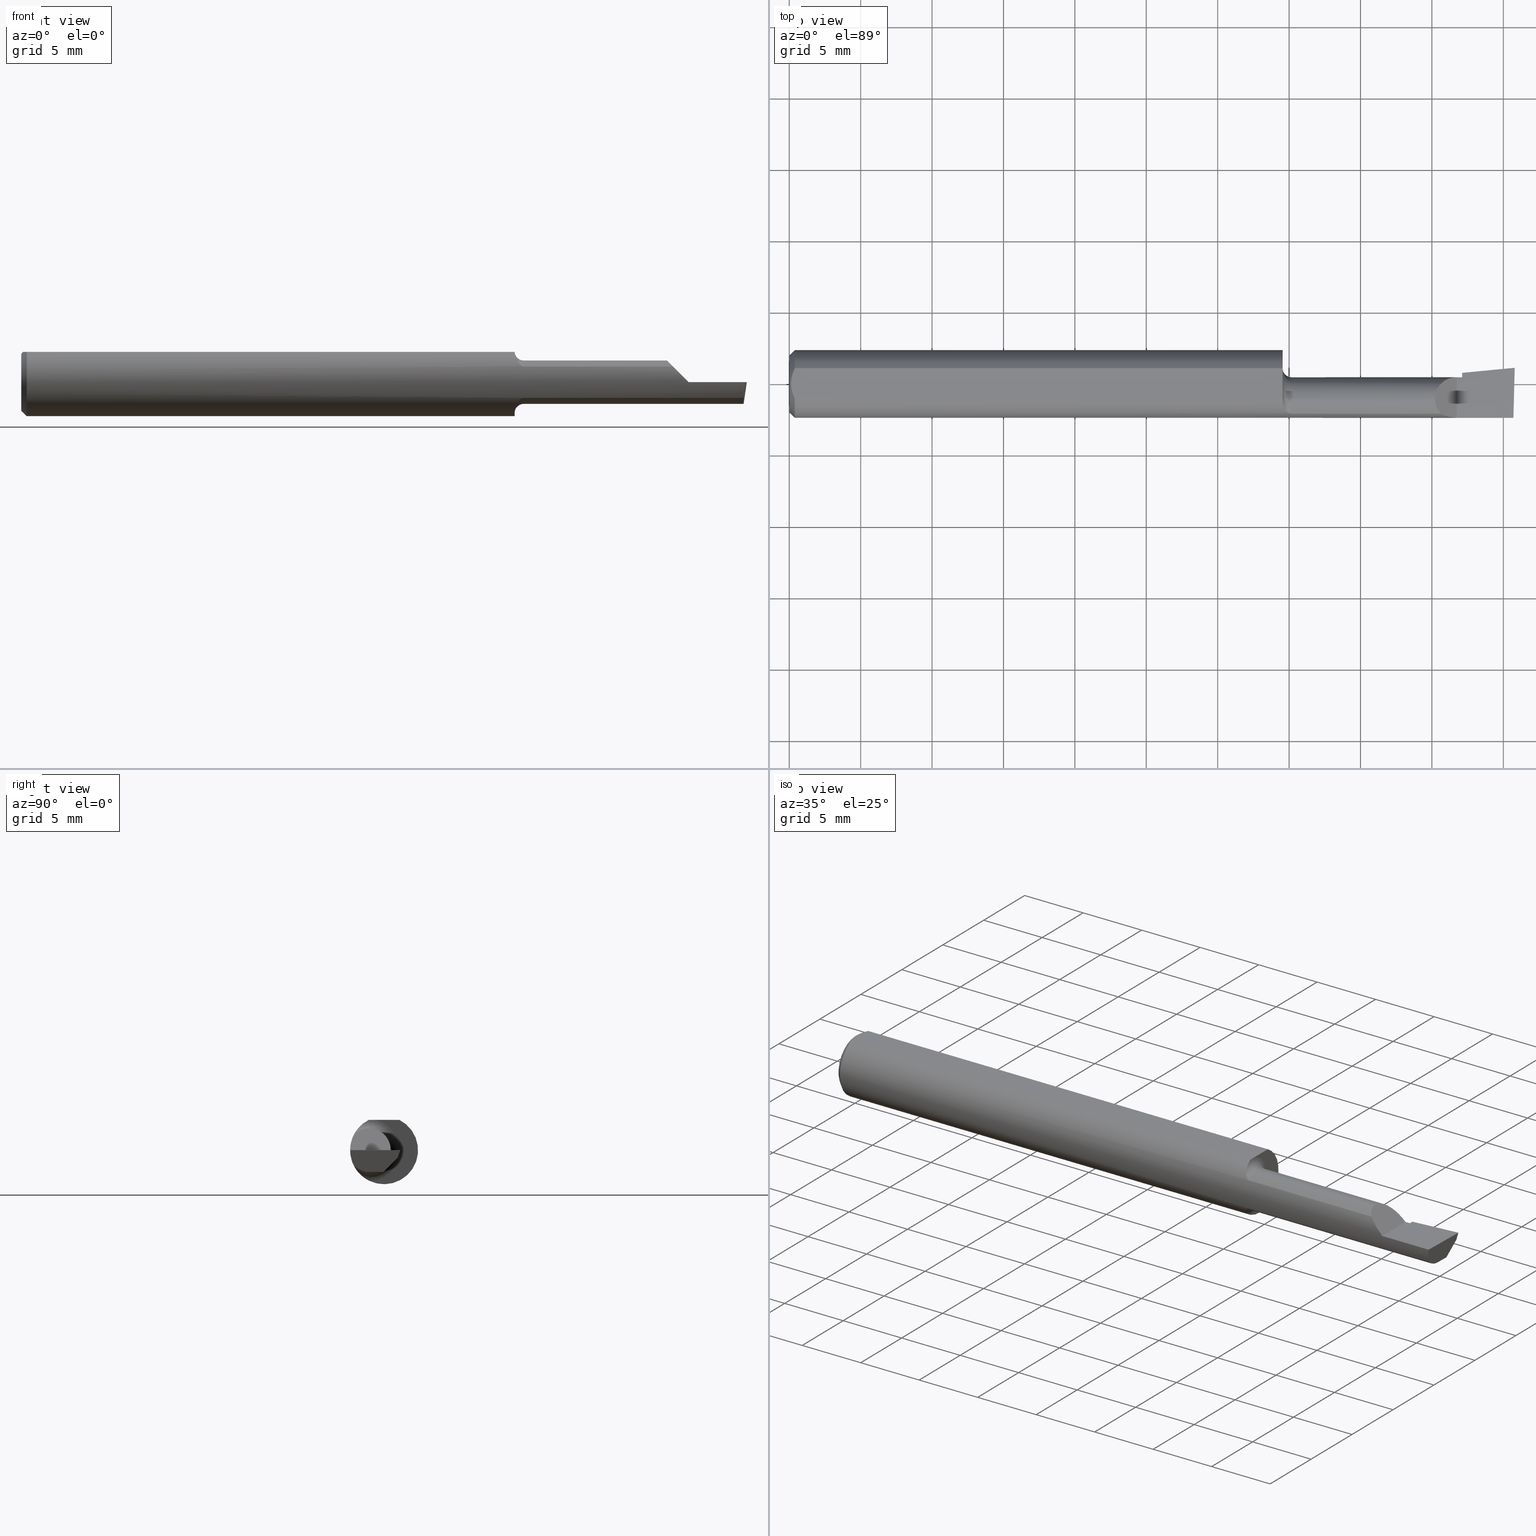
[diagram: canonical four-view strip — front | top / right | iso, engineering-drawing reading convention]
A machine part, canonical four-view strip (front | top / right | iso — engineering-drawing reading convention). The complete STEP part file that produces these views, byte-faithful:
ISO-10303-21;
HEADER;
FILE_DESCRIPTION (( 'STEP AP214' ),
    '1' );
FILE_NAME ('B140600.STEP',
    '2019-07-25T17:26:41',
    ( '' ),
    ( '' ),
    'SwSTEP 2.0',
    'SolidWorks 2018',
    '' );
FILE_SCHEMA (( 'AUTOMOTIVE_DESIGN' ));
ENDSEC;

DATA;
#1 = DIRECTION ( 'NONE',  ( 0.0000000000000000000, -0.6963153109074926572, -0.7177360153954946975 ) ) ;
#2 =( CONVERSION_BASED_UNIT ( 'INCH', #290 ) LENGTH_UNIT ( ) NAMED_UNIT ( #232 ) );
#3 = DIRECTION ( 'NONE',  ( 0.06894566448119619773, -0.7160281025913033393, 0.6946583704589935904 ) ) ;
#4 = ORIENTED_EDGE ( 'NONE', *, *, #201, .T. ) ;
#5 = EDGE_CURVE ( 'NONE', #589, #575, #488, .T. ) ;
#6 = CARTESIAN_POINT ( 'NONE',  ( 1.780099999999999349, -0.006411392386148408520, 0.05989999999999998104 ) ) ;
#7 = ORIENTED_EDGE ( 'NONE', *, *, #635, .F. ) ;
#8 = ORIENTED_EDGE ( 'NONE', *, *, #403, .T. ) ;
#9 = CARTESIAN_POINT ( 'NONE',  ( 1.785977184218892067, -0.07176861043311233423, 0.05402281578110743054 ) ) ;
#10 = CARTESIAN_POINT ( 'NONE',  ( 0.0000000000000000000, 1.054420894065869177E-17, 0.07859999999999965625 ) ) ;
#11 = ORIENTED_EDGE ( 'NONE', *, *, #254, .F. ) ;
#12 = CARTESIAN_POINT ( 'NONE',  ( 2.000000000000000000, -0.04150000000000000216, -0.05990000000000000185 ) ) ;
#13 = AXIS2_PLACEMENT_3D ( 'NONE', #535, #431, #434 ) ;
#14 = CARTESIAN_POINT ( 'NONE',  ( 1.854999999999999982, 0.01840000000000001010, 1.030335658007946637E-15 ) ) ;
#15 = ORIENTED_EDGE ( 'NONE', *, *, #140, .F. ) ;
#16 = DIRECTION ( 'NONE',  ( -0.0000000000000000000, 1.000000000000000000, -0.0000000000000000000 ) ) ;
#17 = CARTESIAN_POINT ( 'NONE',  ( 0.005981829149300843529, 0.01454044632356567453, 0.08360000000000003539 ) ) ;
#18 = DIRECTION ( 'NONE',  ( 1.000000000000000000, 0.0000000000000000000, 0.0000000000000000000 ) ) ;
#19 = EDGE_CURVE ( 'NONE', #617, #42, #270, .T. ) ;
#20 = ORIENTED_EDGE ( 'NONE', *, *, #623, .F. ) ;
#21 = ORIENTED_EDGE ( 'NONE', *, *, #312, .F. ) ;
#22 = FACE_OUTER_BOUND ( 'NONE', #332, .T. ) ;
#23 = VECTOR ( 'NONE', #296, 39.37007874015748143 ) ;
#24 = ORIENTED_EDGE ( 'NONE', *, *, #421, .T. ) ;
#25 = ORIENTED_EDGE ( 'NONE', *, *, #289, .F. ) ;
#26 = CARTESIAN_POINT ( 'NONE',  ( 1.369237437666585455, -0.07513599091569019006, -0.05602756047418826907 ) ) ;
#27 = AXIS2_PLACEMENT_3D ( 'NONE', #317, #517, #614 ) ;
#28 = ADVANCED_FACE ( 'NONE', ( #275 ), #372, .T. ) ;
#29 = PLANE ( 'NONE',  #611 ) ;
#30 = CARTESIAN_POINT ( 'NONE',  ( 1.360020127471513129, -0.04150000000000002298, -0.08389702020930182857 ) ) ;
#31 = VECTOR ( 'NONE', #493, 39.37007874015748854 ) ;
#32 = ORIENTED_EDGE ( 'NONE', *, *, #103, .F. ) ;
#33 = DIRECTION ( 'NONE',  ( -1.000000000000000000, -0.0000000000000000000, -0.0000000000000000000 ) ) ;
#34 = CARTESIAN_POINT ( 'NONE',  ( 1.384999999999999787, -0.08307469879518060429, 0.04312255117789303566 ) ) ;
#35 = CARTESIAN_POINT ( 'NONE',  ( 1.360033712670299932, -0.04209513035969834893, 0.08360000000000000764 ) ) ;
#36 = AXIS2_PLACEMENT_3D ( 'NONE', #302, #310, #564 ) ;
#37 = CARTESIAN_POINT ( 'NONE',  ( 0.0000000000000000000, 0.0000000000000000000, -0.07859999999999965625 ) ) ;
#38 = VERTEX_POINT ( 'NONE', #148 ) ;
#39 = CARTESIAN_POINT ( 'NONE',  ( 1.994631740690216315, 0.01982467021885800373, -0.03846666526582378370 ) ) ;
#40 = EDGE_CURVE ( 'NONE', #176, #450, #514, .T. ) ;
#41 = PRODUCT_RELATED_PRODUCT_CATEGORY ( 'part', '', ( #600 ) ) ;
#42 = VERTEX_POINT ( 'NONE', #10 ) ;
#43 = CARTESIAN_POINT ( 'NONE',  ( 1.854999999999999982, 0.03043808801135869033, -6.049254294211750709E-16 ) ) ;
#44 = CARTESIAN_POINT ( 'NONE',  ( 1.996386342823452065, -0.09360000000000009979, -6.634435288474567089E-17 ) ) ;
#45 = DIRECTION ( 'NONE',  ( 0.0000000000000000000, -0.2936076258024065688, -0.9559260233253794592 ) ) ;
#46 = CARTESIAN_POINT ( 'NONE',  ( 1.384999999999999787, -0.04150000000000000216, 0.0000000000000000000 ) ) ;
#47 = CARTESIAN_POINT ( 'NONE',  ( 0.01499999999999999598, 0.0000000000000000000, -0.09360000000000001652 ) ) ;
#48 = DIRECTION ( 'NONE',  ( -1.000000000000000000, -0.0000000000000000000, -0.0000000000000000000 ) ) ;
#49 =( NAMED_UNIT ( * ) PLANE_ANGLE_UNIT ( ) SI_UNIT ( $, .RADIAN. ) );
#50 = EDGE_LOOP ( 'NONE', ( #24, #515, #658, #155 ) ) ;
#51 = DIRECTION ( 'NONE',  ( -1.000000000000000000, -0.0000000000000000000, -0.0000000000000000000 ) ) ;
#52 = DIRECTION ( 'NONE',  ( 0.02617694830786378504, 0.9996573249755575929, -1.459184416195593542E-17 ) ) ;
#53 = DIRECTION ( 'NONE',  ( -1.000000000000000000, -0.0000000000000000000, -0.0000000000000000000 ) ) ;
#54 = VERTEX_POINT ( 'NONE', #14 ) ;
#55 = PLANE ( 'NONE',  #80 ) ;
#56 = FACE_OUTER_BOUND ( 'NONE', #494, .T. ) ;
#57 = CARTESIAN_POINT ( 'NONE',  ( 1.840000000000000080, -0.09360000000000005815, 1.959434878635762025E-17 ) ) ;
#58 = ORIENTED_EDGE ( 'NONE', *, *, #522, .T. ) ;
#59 = CARTESIAN_POINT ( 'NONE',  ( 1.810264301876177928, -0.09002356847881788637, 0.02973569812382168345 ) ) ;
#60 = DIRECTION ( 'NONE',  ( 0.0000000000000000000, 0.0000000000000000000, 1.000000000000000000 ) ) ;
#61 = ORIENTED_EDGE ( 'NONE', *, *, #261, .T. ) ;
#62 = CARTESIAN_POINT ( 'NONE',  ( 1.360020127471513129, -0.04150000000000002298, -0.08389702020930182857 ) ) ;
#63 = CARTESIAN_POINT ( 'NONE',  ( 0.01499999999999999944, -0.04209513035969835587, 0.08360000000000000764 ) ) ;
#64 = EDGE_CURVE ( 'NONE', #38, #321, #608, .T. ) ;
#65 = CARTESIAN_POINT ( 'NONE',  ( 1.996386342823452065, -0.09360000000000009979, -6.634435288474567089E-17 ) ) ;
#66 = ORIENTED_EDGE ( 'NONE', *, *, #347, .F. ) ;
#67 = EDGE_LOOP ( 'NONE', ( #156, #196, #548, #593 ) ) ;
#68 = CONICAL_SURFACE ( 'NONE', #247, 0.09360000000000001652, 0.7853981633974601584 ) ;
#69 = LINE ( 'NONE', #613, #172 ) ;
#70 = VECTOR ( 'NONE', #620, 39.37007874015748143 ) ;
#71 = CARTESIAN_POINT ( 'NONE',  ( 1.619999999999999885, -0.08307469879518077083, 0.04312255117789289688 ) ) ;
#72 = VECTOR ( 'NONE', #262, 39.37007874015748854 ) ;
#73 = ORIENTED_EDGE ( 'NONE', *, *, #143, .T. ) ;
#74 = CARTESIAN_POINT ( 'NONE',  ( 1.373672693420809443, -0.07917899622880057720, -0.04997532113045943802 ) ) ;
#75 = ADVANCED_FACE ( 'NONE', ( #136 ), #251, .T. ) ;
#76 = LENGTH_MEASURE_WITH_UNIT ( LENGTH_MEASURE( 0.02539999999999999897 ), #189 );
#77 = CARTESIAN_POINT ( 'NONE',  ( 1.369277238843510602, -0.07518688180261752507, 0.05595855205958088358 ) ) ;
#78 = ORIENTED_EDGE ( 'NONE', *, *, #178, .T. ) ;
#79 = DIMENSIONAL_EXPONENTS ( 1.000000000000000000, 0.0000000000000000000, 0.0000000000000000000, 0.0000000000000000000, 0.0000000000000000000, 0.0000000000000000000, 0.0000000000000000000 ) ;
#80 = AXIS2_PLACEMENT_3D ( 'NONE', #566, #355, #97 ) ;
#81 = CARTESIAN_POINT ( 'NONE',  ( 1.360033712670299932, -0.04209513035969834893, 0.08360000000000000764 ) ) ;
#82 = ORIENTED_EDGE ( 'NONE', *, *, #573, .F. ) ;
#83 = FACE_OUTER_BOUND ( 'NONE', #224, .T. ) ;
#84 = ORIENTED_EDGE ( 'NONE', *, *, #470, .F. ) ;
#85 = B_SPLINE_CURVE_WITH_KNOTS ( 'NONE', 3,
 ( #81, #631, #182, #432, #123, #328, #77, #484, #384, #430, #283, #237 ),
 .UNSPECIFIED., .F., .F.,
 ( 4, 2, 2, 2, 2, 4 ),
 ( 4.385794166506856804E-07, 0.0004249653867803443734, 0.0008494921941440383879, 0.001274019001507732457, 0.001486282405189579166, 0.001698545808871426092 ),
 .UNSPECIFIED. ) ;
#86 = AXIS2_PLACEMENT_3D ( 'NONE', #386, #629, #223 ) ;
#87 = DIRECTION ( 'NONE',  ( 0.0000000000000000000, 0.0000000000000000000, 1.000000000000000000 ) ) ;
#88 = EDGE_LOOP ( 'NONE', ( #651, #291, #350 ) ) ;
#89 = CARTESIAN_POINT ( 'NONE',  ( 1.992827658777091893, -0.09002356847881787250, -0.02973569812382169039 ) ) ;
#90 = ORIENTED_EDGE ( 'NONE', *, *, #468, .F. ) ;
#91 = CARTESIAN_POINT ( 'NONE',  ( 1.796877448822106649, -0.08307469879518074307, 0.04312255117789294545 ) ) ;
#92 = EDGE_LOOP ( 'NONE', ( #58, #644, #119 ) ) ;
#93 = DIRECTION ( 'NONE',  ( 1.000000000000000000, 0.0000000000000000000, 0.0000000000000000000 ) ) ;
#94 =( LENGTH_UNIT ( ) NAMED_UNIT ( * ) SI_UNIT ( $, .METRE. ) );
#95 = PRODUCT_DEFINITION_FORMATION_WITH_SPECIFIED_SOURCE ( 'ANY', '', #600, .NOT_KNOWN. ) ;
#96 = ORIENTED_EDGE ( 'NONE', *, *, #604, .F. ) ;
#97 = DIRECTION ( 'NONE',  ( -1.000000000000000000, 0.0000000000000000000, 5.493159289247764363E-16 ) ) ;
#98 = ORIENTED_EDGE ( 'NONE', *, *, #357, .T. ) ;
#99 = DIRECTION ( 'NONE',  ( 0.0000000000000000000, 0.0000000000000000000, 1.000000000000000000 ) ) ;
#100 = ORIENTED_EDGE ( 'NONE', *, *, #503, .F. ) ;
#101 = AXIS2_PLACEMENT_3D ( 'NONE', #109, #367, #361 ) ;
#102 = DIRECTION ( 'NONE',  ( 0.0000000000000000000, 0.0000000000000000000, -1.000000000000000000 ) ) ;
#103 = EDGE_CURVE ( 'NONE', #621, #634, #239, .T. ) ;
#104 = CLOSED_SHELL ( 'NONE', ( #75, #28, #428, #285, #441, #587, #180, #326, #530, #377, #118, #228, #594, #640, #436, #529, #274, #338, #195 ) ) ;
#105 = PRESENTATION_STYLE_ASSIGNMENT (( #325 ) ) ;
#106 = CARTESIAN_POINT ( 'NONE',  ( 1.840000000000000080, -0.2500000000000000555, 1.959434878635762025E-17 ) ) ;
#107 = CARTESIAN_POINT ( 'NONE',  ( 1.780099999999999349, -0.05720488466914004644, 0.05989999999999997410 ) ) ;
#108 = EDGE_CURVE ( 'NONE', #617, #276, #554, .T. ) ;
#109 = CARTESIAN_POINT ( 'NONE',  ( 1.384999999999999787, -0.04150000000000001604, 0.08489999999999996161 ) ) ;
#110 = DIRECTION ( 'NONE',  ( -1.000000000000000000, 5.691349986800549142E-18, -0.0000000000000000000 ) ) ;
#111 = ORIENTED_EDGE ( 'NONE', *, *, #197, .F. ) ;
#112 = ORIENTED_EDGE ( 'NONE', *, *, #178, .F. ) ;
#113 = AXIS2_PLACEMENT_3D ( 'NONE', #200, #444, #650 ) ;
#114 = CARTESIAN_POINT ( 'NONE',  ( 0.01499999999999999598, 0.04209513035969837669, 0.08360000000000000764 ) ) ;
#115 = EDGE_LOOP ( 'NONE', ( #266, #90, #579, #409, #433 ) ) ;
#116 = EDGE_LOOP ( 'NONE', ( #465, #260 ) ) ;
#117 = LINE ( 'NONE', #649, #647 ) ;
#118 = ADVANCED_FACE ( 'NONE', ( #128 ), #648, .T. ) ;
#119 = ORIENTED_EDGE ( 'NONE', *, *, #463, .T. ) ;
#120 = DIRECTION ( 'NONE',  ( -0.0000000000000000000, 0.0000000000000000000, 1.000000000000000000 ) ) ;
#121 = AXIS2_PLACEMENT_3D ( 'NONE', #381, #181, #376 ) ;
#122 = DIRECTION ( 'NONE',  ( 0.0000000000000000000, 0.6963153109074926572, 0.7177360153954946975 ) ) ;
#123 = CARTESIAN_POINT ( 'NONE',  ( 1.363721006865827645, -0.06478644025684784924, 0.06776242552123268315 ) ) ;
#124 = VERTEX_POINT ( 'NONE', #62 ) ;
#125 = VECTOR ( 'NONE', #659, 39.37007874015748854 ) ;
#126 = CARTESIAN_POINT ( 'NONE',  ( 1.367076397983110869, -0.07187891021191493424, -0.06019546731975673054 ) ) ;
#127 = VECTOR ( 'NONE', #520, 39.37007874015748143 ) ;
#128 = FACE_OUTER_BOUND ( 'NONE', #322, .T. ) ;
#129 = CARTESIAN_POINT ( 'NONE',  ( 1.619999999999999885, -0.08307469879518077083, -0.04312255117789289688 ) ) ;
#130 = AXIS2_PLACEMENT_3D ( 'NONE', #451, #142, #45 ) ;
#131 = B_SPLINE_CURVE_WITH_KNOTS ( 'NONE', 3,
 ( #527, #227, #578, #582 ),
 .UNSPECIFIED., .F., .F.,
 ( 4, 4 ),
 ( 0.001735506710063797848, 0.001793010945052102593 ),
 .UNSPECIFIED. ) ;
#132 = CARTESIAN_POINT ( 'NONE',  ( 0.01499999999999999598, 0.04209513035969837669, 0.08360000000000000764 ) ) ;
#133 = VERTEX_POINT ( 'NONE', #466 ) ;
#134 = VERTEX_POINT ( 'NONE', #571 ) ;
#135 = CARTESIAN_POINT ( 'NONE',  ( 1.360033749376515555, -0.04199594133387060668, 0.08360000000000003539 ) ) ;
#136 = FACE_OUTER_BOUND ( 'NONE', #443, .T. ) ;
#137 = CARTESIAN_POINT ( 'NONE',  ( 0.009539353699420828961, -0.02875682547511369466, 0.08360000000000000764 ) ) ;
#138 = ORIENTED_EDGE ( 'NONE', *, *, #197, .T. ) ;
#139 = CARTESIAN_POINT ( 'NONE',  ( 1.994533757673610408, -0.09360000000000001652, -0.01508292493422509241 ) ) ;
#140 = EDGE_CURVE ( 'NONE', #341, #445, #354, .T. ) ;
#141 = PRODUCT_DEFINITION_SHAPE ( 'NONE', 'NONE',  #368 ) ;
#142 = DIRECTION ( 'NONE',  ( 0.09165774897393337561, -0.9519021185660612172, 0.2923717047227308297 ) ) ;
#143 = EDGE_CURVE ( 'NONE', #547, #144, #210, .T. ) ;
#144 = VERTEX_POINT ( 'NONE', #218 ) ;
#145 = CARTESIAN_POINT ( 'NONE',  ( 1.360010473476444215, -0.03163306423249834243, 0.08360000000000000764 ) ) ;
#146 = ORIENTED_EDGE ( 'NONE', *, *, #108, .F. ) ;
#147 = CARTESIAN_POINT ( 'NONE',  ( 1.780099999999999349, -0.04150000000000000216, 0.05989999999999998104 ) ) ;
#148 = CARTESIAN_POINT ( 'NONE',  ( 1.360033822879743504, -0.04150000000000001604, 0.08360000000000000764 ) ) ;
#149 = AXIS2_PLACEMENT_3D ( 'NONE', #546, #639, #396 ) ;
#150 = CARTESIAN_POINT ( 'NONE',  ( 1.840000000000000080, 0.01839999999999989908, 1.959434878635762025E-17 ) ) ;
#151 = VERTEX_POINT ( 'NONE', #65 ) ;
#152 = EDGE_CURVE ( 'NONE', #510, #321, #174, .T. ) ;
#153 = FACE_OUTER_BOUND ( 'NONE', #229, .T. ) ;
#154 = LINE ( 'NONE', #339, #23 ) ;
#155 = ORIENTED_EDGE ( 'NONE', *, *, #458, .T. ) ;
#156 = ORIENTED_EDGE ( 'NONE', *, *, #64, .F. ) ;
#157 = AXIS2_PLACEMENT_3D ( 'NONE', #412, #467, #173 ) ;
#158 = CARTESIAN_POINT ( 'NONE',  ( 1.992296147241039872, -0.2497982675158734178, -6.406435080701882457E-17 ) ) ;
#159 = EDGE_CURVE ( 'NONE', #589, #373, #202, .T. ) ;
#160 = DIRECTION ( 'NONE',  ( 0.0000000000000000000, 0.0000000000000000000, 1.000000000000000000 ) ) ;
#161 = CIRCLE ( 'NONE', #424, 0.09360000000000001652 ) ;
#162 = CARTESIAN_POINT ( 'NONE',  ( 1.846299648997745013, 0.02345744519840431766, -0.02000000000000000042 ) ) ;
#163 = DIRECTION ( 'NONE',  ( 0.0000000000000000000, -1.000000000000000000, 1.189000693621284344E-16 ) ) ;
#164 = VECTOR ( 'NONE', #53, 39.37007874015748143 ) ;
#165 = EDGE_CURVE ( 'NONE', #574, #276, #496, .T. ) ;
#166 = CARTESIAN_POINT ( 'NONE',  ( 1.360033712670299932, -0.04209513035969834893, 0.08360000000000000764 ) ) ;
#167 = CARTESIAN_POINT ( 'NONE',  ( 1.991365359011875169, -0.08307469879518077083, -0.04312255117789289688 ) ) ;
#168 = CARTESIAN_POINT ( 'NONE',  ( 0.01499999999999999598, 0.0000000000000000000, 0.0000000000000000000 ) ) ;
#169 = CARTESIAN_POINT ( 'NONE',  ( 2.000000000000000000, 0.1436000000000000332, 0.08359999999999999376 ) ) ;
#170 = ORIENTED_EDGE ( 'NONE', *, *, #414, .T. ) ;
#171 = VECTOR ( 'NONE', #110, 39.37007874015748143 ) ;
#172 = VECTOR ( 'NONE', #163, 39.37007874015748143 ) ;
#173 = DIRECTION ( 'NONE',  ( 0.0000000000000000000, 0.0000000000000000000, 1.000000000000000000 ) ) ;
#174 = CIRCLE ( 'NONE', #549, 0.05989999999999995328 ) ;
#175 = FACE_OUTER_BOUND ( 'NONE', #92, .T. ) ;
#176 = VERTEX_POINT ( 'NONE', #166 ) ;
#177 = EDGE_LOOP ( 'NONE', ( #607, #526, #505, #625 ) ) ;
#178 = EDGE_CURVE ( 'NONE', #54, #589, #314, .T. ) ;
#179 = CARTESIAN_POINT ( 'NONE',  ( 2.000000000000000000, -0.04150000000000000216, -0.05990000000000000185 ) ) ;
#180 = ADVANCED_FACE ( 'NONE', ( #56 ), #226, .F. ) ;
#181 = DIRECTION ( 'NONE',  ( -1.000000000000000000, -0.0000000000000000000, -0.0000000000000000000 ) ) ;
#182 = CARTESIAN_POINT ( 'NONE',  ( 1.360661035553191178, -0.05185656404701179112, 0.07811662714583192391 ) ) ;
#183 = B_SPLINE_CURVE_WITH_KNOTS ( 'NONE', 3,
 ( #297, #448, #137, #245, #401, #550 ),
 .UNSPECIFIED., .F., .F.,
 ( 4, 2, 4 ),
 ( 0.005785415439423114564, 0.006333348270144337384, 0.006881281100865560205 ),
 .UNSPECIFIED. ) ;
#184 =( NAMED_UNIT ( * ) SI_UNIT ( $, .STERADIAN. ) SOLID_ANGLE_UNIT ( ) );
#185 = ORIENTED_EDGE ( 'NONE', *, *, #635, .T. ) ;
#186 = CARTESIAN_POINT ( 'NONE',  ( 1.360121283746727805, -0.04659318327468397331, -0.08137765652544183548 ) ) ;
#187 = CARTESIAN_POINT ( 'NONE',  ( 1.840000000000000080, -0.09360000000000005815, 1.959434878635762025E-17 ) ) ;
#188 = CARTESIAN_POINT ( 'NONE',  ( 5.659797890829555466E-31, 0.01839999999999996499, 1.030335658007946046E-15 ) ) ;
#189 =( LENGTH_UNIT ( ) NAMED_UNIT ( * ) SI_UNIT ( $, .METRE. ) );
#190 = VERTEX_POINT ( 'NONE', #429 ) ;
#191 = ORIENTED_EDGE ( 'NONE', *, *, #427, .T. ) ;
#192 = CYLINDRICAL_SURFACE ( 'NONE', #157, 0.05989999999999998104 ) ;
#193 = LINE ( 'NONE', #592, #610 ) ;
#194 = DIRECTION ( 'NONE',  ( 0.0000000000000000000, 0.0000000000000000000, 1.000000000000000000 ) ) ;
#195 = ADVANCED_FACE ( 'NONE', ( #486 ), #233, .F. ) ;
#196 = ORIENTED_EDGE ( 'NONE', *, *, #657, .T. ) ;
#197 = EDGE_CURVE ( 'NONE', #144, #54, #581, .T. ) ;
#198 = ORIENTED_EDGE ( 'NONE', *, *, #421, .F. ) ;
#199 = PLANE ( 'NONE',  #149 ) ;
#200 = CARTESIAN_POINT ( 'NONE',  ( 0.0000000000000000000, 0.0000000000000000000, 0.0000000000000000000 ) ) ;
#201 = EDGE_CURVE ( 'NONE', #151, #547, #193, .T. ) ;
#202 = LINE ( 'NONE', #271, #70 ) ;
#203 = CARTESIAN_POINT ( 'NONE',  ( 1.359999999999999654, -0.02669966216601827105, 0.08360000000000000764 ) ) ;
#204 = CARTESIAN_POINT ( 'NONE',  ( 0.0000000000000000000, 0.0000000000000000000, 0.0000000000000000000 ) ) ;
#205 = DIRECTION ( 'NONE',  ( -1.000000000000000000, -0.0000000000000000000, -0.0000000000000000000 ) ) ;
#206 = SURFACE_STYLE_USAGE ( .BOTH. , #303 ) ;
#207 = ORIENTED_EDGE ( 'NONE', *, *, #481, .F. ) ;
#208 = PLANE ( 'NONE',  #375 ) ;
#209 = AXIS2_PLACEMENT_3D ( 'NONE', #601, #205, #294 ) ;
#210 = LINE ( 'NONE', #106, #591 ) ;
#211 = ORIENTED_EDGE ( 'NONE', *, *, #414, .F. ) ;
#212 = CARTESIAN_POINT ( 'NONE',  ( 0.0000000000000000000, -0.04149999999999999523, -0.05989999999999998104 ) ) ;
#213 = CARTESIAN_POINT ( 'NONE',  ( 1.796877448822106649, -0.08307469879518074307, 0.04312255117789294545 ) ) ;
#214 = LENGTH_MEASURE_WITH_UNIT ( LENGTH_MEASURE( 0.02539999999999999897 ), #536 );
#215 = DIRECTION ( 'NONE',  ( -1.000000000000000000, -0.0000000000000000000, -0.0000000000000000000 ) ) ;
#216 = DIRECTION ( 'NONE',  ( 0.7071067811865391350, 0.0000000000000000000, -0.7071067811865558994 ) ) ;
#217 = ORIENTED_EDGE ( 'NONE', *, *, #300, .T. ) ;
#218 = CARTESIAN_POINT ( 'NONE',  ( 1.840000000000000080, 0.01839999999999989908, 1.959434878635762025E-17 ) ) ;
#219 = FACE_OUTER_BOUND ( 'NONE', #67, .T. ) ;
#220 = CIRCLE ( 'NONE', #383, 0.05989999999999995328 ) ;
#221 = CARTESIAN_POINT ( 'NONE',  ( 1.990322576363892759, -0.07176861043311237587, -0.05402281578110740279 ) ) ;
#222 = UNCERTAINTY_MEASURE_WITH_UNIT (LENGTH_MEASURE( 1.000000000000000082E-05 ), #440, 'distance_accuracy_value', 'NONE');
#223 = DIRECTION ( 'NONE',  ( 0.0000000000000000000, 0.0000000000000000000, 1.000000000000000000 ) ) ;
#224 = EDGE_LOOP ( 'NONE', ( #475, #472, #112, #346, #25 ) ) ;
#225 = VECTOR ( 'NONE', #498, 39.37007874015748854 ) ;
#226 = PLANE ( 'NONE',  #630 ) ;
#227 = CARTESIAN_POINT ( 'NONE',  ( 1.360006719116742424, -0.04082489400077272956, -0.08423096411932438909 ) ) ;
#228 = ADVANCED_FACE ( 'NONE', ( #219 ), #449, .F. ) ;
#229 = EDGE_LOOP ( 'NONE', ( #82, #385, #4, #170, #336, #259, #531, #20, #485, #439, #100, #425, #558 ) ) ;
#230 = B_SPLINE_CURVE_WITH_KNOTS ( 'NONE', 3,
 ( #533, #483, #234, #480, #74, #26, #126, #585, #577, #626, #186, #30 ),
 .UNSPECIFIED., .F., .F.,
 ( 4, 2, 2, 2, 2, 4 ),
 ( 1.963546462201886234E-07, 0.0002171101490734169543, 0.0004340239435006137524, 0.0008678515323550084872, 0.001301679121209403005, 0.001735506710063797848 ),
 .UNSPECIFIED. ) ;
#231 =( NAMED_UNIT ( * ) PLANE_ANGLE_UNIT ( ) SI_UNIT ( $, .RADIAN. ) );
#232 = DIMENSIONAL_EXPONENTS ( 1.000000000000000000, 0.0000000000000000000, 0.0000000000000000000, 0.0000000000000000000, 0.0000000000000000000, 0.0000000000000000000, 0.0000000000000000000 ) ;
#233 = PLANE ( 'NONE',  #13 ) ;
#234 = CARTESIAN_POINT ( 'NONE',  ( 1.379498465877713853, -0.08233174416856396671, -0.04456779206614371047 ) ) ;
#235 =( BOUNDED_CURVE ( )  B_SPLINE_CURVE ( 3, ( #147, #6, #256, #150 ),
 .UNSPECIFIED., .F., .T. ) 
 B_SPLINE_CURVE_WITH_KNOTS ( ( 4, 4 ),
 ( 0.0000000000000000000, 1.570796326794896558 ),
 .UNSPECIFIED. ) 
 CURVE ( )  GEOMETRIC_REPRESENTATION_ITEM ( )  RATIONAL_B_SPLINE_CURVE ( ( 1.000000000000000000, 0.8047378541243649375, 0.8047378541243649375, 1.000000000000000000 ) ) 
 REPRESENTATION_ITEM ( '' )  );
#236 = ORIENTED_EDGE ( 'NONE', *, *, #623, .T. ) ;
#237 = CARTESIAN_POINT ( 'NONE',  ( 1.384999999999999787, -0.08307469879518060429, 0.04312255117789303566 ) ) ;
#238 = EDGE_CURVE ( 'NONE', #373, #621, #268, .T. ) ;
#239 = LINE ( 'NONE', #162, #419 ) ;
#240 = CARTESIAN_POINT ( 'NONE',  ( 1.989982066092358393, -0.05720488466914005338, -0.05989999999999997410 ) ) ;
#241 = ORIENTED_EDGE ( 'NONE', *, *, #19, .F. ) ;
#242 = APPLICATION_CONTEXT ( 'automotive_design' ) ;
#243 = DIRECTION ( 'NONE',  ( 1.000000000000000000, 0.0000000000000000000, 0.0000000000000000000 ) ) ;
#244 = LINE ( 'NONE', #606, #125 ) ;
#245 = CARTESIAN_POINT ( 'NONE',  ( 0.005975039161239529238, -0.01453776427033147065, 0.08359999999999997988 ) ) ;
#246 = CARTESIAN_POINT ( 'NONE',  ( 1.360033822879743504, -0.04150000000000001604, 0.08360000000000000764 ) ) ;
#247 = AXIS2_PLACEMENT_3D ( 'NONE', #168, #18, #374 ) ;
#248 = DIRECTION ( 'NONE',  ( 0.0000000000000000000, 0.0000000000000000000, 1.000000000000000000 ) ) ;
#249 = ORIENTED_EDGE ( 'NONE', *, *, #516, .F. ) ;
#250 = CIRCLE ( 'NONE', #36, 0.02500000000000007425 ) ;
#251 = CYLINDRICAL_SURFACE ( 'NONE', #410, 0.05989999999999998104 ) ;
#252 = APPLICATION_CONTEXT ( 'automotive_design' ) ;
#253 = AXIS2_PLACEMENT_3D ( 'NONE', #641, #342, #590 ) ;
#254 = EDGE_CURVE ( 'NONE', #42, #617, #553, .T. ) ;
#255 = EDGE_LOOP ( 'NONE', ( #400, #98, #499, #392, #111, #655 ) ) ;
#256 = CARTESIAN_POINT ( 'NONE',  ( 1.804911392386147506, 0.01839999999999997540, 0.03508860761385160232 ) ) ;
#257 = CIRCLE ( 'NONE', #490, 0.05989999999999995328 ) ;
#258 = FACE_OUTER_BOUND ( 'NONE', #116, .T. ) ;
#259 = ORIENTED_EDGE ( 'NONE', *, *, #537, .F. ) ;
#260 = ORIENTED_EDGE ( 'NONE', *, *, #254, .T. ) ;
#261 = EDGE_CURVE ( 'NONE', #450, #459, #183, .T. ) ;
#262 = DIRECTION ( 'NONE',  ( -0.02617694830786378504, -0.9996573249755575929, 0.0000000000000000000 ) ) ;
#263 = AXIS2_PLACEMENT_3D ( 'NONE', #204, #51, #348 ) ;
#264 = DIRECTION ( 'NONE',  ( 0.0000000000000000000, 0.0000000000000000000, 1.000000000000000000 ) ) ;
#265 = CARTESIAN_POINT ( 'NONE',  ( 0.01499999999999999598, 0.0000000000000000000, -0.09360000000000001652 ) ) ;
#266 = ORIENTED_EDGE ( 'NONE', *, *, #5, .F. ) ;
#267 = DIRECTION ( 'NONE',  ( -1.000000000000000000, -0.0000000000000000000, -0.0000000000000000000 ) ) ;
#268 = LINE ( 'NONE', #596, #632 ) ;
#269 = LINE ( 'NONE', #464, #127 ) ;
#270 = CIRCLE ( 'NONE', #654, 0.07859999999999965625 ) ;
#271 = CARTESIAN_POINT ( 'NONE',  ( 1.854999999999999982, -0.04150000000000000216, -0.05990000000000000185 ) ) ;
#272 = CARTESIAN_POINT ( 'NONE',  ( 0.005000000000000225618, 0.007308422719211825694, 0.08360000000000000764 ) ) ;
#273 = ORIENTED_EDGE ( 'NONE', *, *, #279, .F. ) ;
#274 = ADVANCED_FACE ( 'NONE', ( #479 ), #598, .F. ) ;
#275 = FACE_OUTER_BOUND ( 'NONE', #50, .T. ) ;
#276 = VERTEX_POINT ( 'NONE', #47 ) ;
#277 =( GEOMETRIC_REPRESENTATION_CONTEXT ( 3 ) GLOBAL_UNCERTAINTY_ASSIGNED_CONTEXT ( ( #420 ) ) GLOBAL_UNIT_ASSIGNED_CONTEXT ( ( #2, #49, #356 ) ) REPRESENTATION_CONTEXT ( 'NONE', 'WORKASPACE' ) );
#278 = FILL_AREA_STYLE ('',( #474 ) ) ;
#279 = EDGE_CURVE ( 'NONE', #318, #38, #637, .T. ) ;
#280 = DIRECTION ( 'NONE',  ( 0.0000000000000000000, 0.0000000000000000000, 1.000000000000000000 ) ) ;
#281 = SURFACE_SIDE_STYLE ('',( #559 ) ) ;
#282 = VECTOR ( 'NONE', #216, 39.37007874015748143 ) ;
#283 = CARTESIAN_POINT ( 'NONE',  ( 1.382123707331537332, -0.08307469879541819202, 0.04312255117743568622 ) ) ;
#284 = CARTESIAN_POINT ( 'NONE',  ( 1.384999999999999787, -0.04150000000000001604, 0.0000000000000000000 ) ) ;
#285 = ADVANCED_FACE ( 'NONE', ( #343 ), #298, .F. ) ;
#286 = EDGE_CURVE ( 'NONE', #54, #307, #154, .T. ) ;
#287 = ORIENTED_EDGE ( 'NONE', *, *, #279, .T. ) ;
#288 = VECTOR ( 'NONE', #295, 39.37007874015748854 ) ;
#289 = EDGE_CURVE ( 'NONE', #621, #307, #627, .T. ) ;
#290 = LENGTH_MEASURE_WITH_UNIT ( LENGTH_MEASURE( 0.02539999999999999897 ), #94 );
#291 = ORIENTED_EDGE ( 'NONE', *, *, #481, .T. ) ;
#292 = CARTESIAN_POINT ( 'NONE',  ( 1.359999999999999654, -0.02916612216505918773, 0.08360000000000000764 ) ) ;
#293 = EDGE_LOOP ( 'NONE', ( #217, #612, #32, #454 ) ) ;
#294 = DIRECTION ( 'NONE',  ( 0.0000000000000000000, 0.0000000000000000000, 1.000000000000000000 ) ) ;
#295 = DIRECTION ( 'NONE',  ( -0.1053106618241658743, -0.6976485211320175850, -0.7086580314005231918 ) ) ;
#296 = DIRECTION ( 'NONE',  ( 0.0000000000000000000, 1.000000000000000000, 0.0000000000000000000 ) ) ;
#297 = CARTESIAN_POINT ( 'NONE',  ( 0.01499999999999999944, -0.04209513035969835587, 0.08360000000000000764 ) ) ;
#298 = TOROIDAL_SURFACE ( 'NONE', #209, 0.08489999999999996161, 0.02500000000000007425 ) ;
#299 = ORIENTED_EDGE ( 'NONE', *, *, #103, .T. ) ;
#300 = EDGE_CURVE ( 'NONE', #307, #133, #417, .T. ) ;
#301 = STYLED_ITEM ( 'NONE', ( #105 ), #508 ) ;
#302 = CARTESIAN_POINT ( 'NONE',  ( 1.384999999999999787, -0.04150000000000000216, -0.08489999999999996161 ) ) ;
#303 = SURFACE_SIDE_STYLE ('',( #569 ) ) ;
#304 = DIRECTION ( 'NONE',  ( -1.000000000000000000, -0.0000000000000000000, -0.0000000000000000000 ) ) ;
#305 = ORIENTED_EDGE ( 'NONE', *, *, #583, .T. ) ;
#306 = VERTEX_POINT ( 'NONE', #91 ) ;
#307 = VERTEX_POINT ( 'NONE', #398 ) ;
#308 = CARTESIAN_POINT ( 'NONE',  ( 1.824917075065774830, -0.09360000000000001652, 0.01508292493422502302 ) ) ;
#309 =( GEOMETRIC_REPRESENTATION_CONTEXT ( 3 ) GLOBAL_UNCERTAINTY_ASSIGNED_CONTEXT ( ( #222 ) ) GLOBAL_UNIT_ASSIGNED_CONTEXT ( ( #440, #489, #542 ) ) REPRESENTATION_CONTEXT ( 'NONE', 'WORKASPACE' ) );
#310 = DIRECTION ( 'NONE',  ( -0.0000000000000000000, 1.000000000000000000, 1.224646799147353207E-16 ) ) ;
#311 = DIRECTION ( 'NONE',  ( -1.000000000000000000, -0.0000000000000000000, -0.0000000000000000000 ) ) ;
#312 = EDGE_CURVE ( 'NONE', #365, #321, #560, .T. ) ;
#313 = CYLINDRICAL_SURFACE ( 'NONE', #113, 0.09360000000000001652 ) ;
#314 = CIRCLE ( 'NONE', #387, 0.05990000000000000185 ) ;
#315 = CARTESIAN_POINT ( 'NONE',  ( 1.384999999999999787, -0.04150000000000000216, 0.0000000000000000000 ) ) ;
#316 = EDGE_LOOP ( 'NONE', ( #636, #543, #249, #287, #518, #185 ) ) ;
#317 = CARTESIAN_POINT ( 'NONE',  ( 0.01499999999999999598, 0.0000000000000000000, 0.0000000000000000000 ) ) ;
#318 = VERTEX_POINT ( 'NONE', #203 ) ;
#319 = ORIENTED_EDGE ( 'NONE', *, *, #403, .F. ) ;
#320 = ADVANCED_BREP_SHAPE_REPRESENTATION ( 'B140600', ( #508, #378 ), #309 ) ;
#321 = VERTEX_POINT ( 'NONE', #360 ) ;
#322 = EDGE_LOOP ( 'NONE', ( #84, #241, #331, #236, #61 ) ) ;
#323 = EDGE_CURVE ( 'NONE', #574, #380, #117, .T. ) ;
#324 =( CONVERSION_BASED_UNIT ( 'INCH', #214 ) LENGTH_UNIT ( ) NAMED_UNIT ( #79 ) );
#325 = SURFACE_STYLE_USAGE ( .BOTH. , #281 ) ;
#326 = ADVANCED_FACE ( 'NONE', ( #512 ), #55, .F. ) ;
#327 = AXIS2_PLACEMENT_3D ( 'NONE', #284, #638, #491 ) ;
#328 = CARTESIAN_POINT ( 'NONE',  ( 1.367169981117899669, -0.07201923175886888739, 0.06001882546782343064 ) ) ;
#329 = DIRECTION ( 'NONE',  ( 0.0000000000000000000, 0.0000000000000000000, 1.000000000000000000 ) ) ;
#330 = CARTESIAN_POINT ( 'NONE',  ( 1.360033804492674303, -0.04179756391332128951, 0.08360000000000000764 ) ) ;
#331 = ORIENTED_EDGE ( 'NONE', *, *, #108, .T. ) ;
#332 = EDGE_LOOP ( 'NONE', ( #11, #422, #191, #528, #146 ) ) ;
#333 = CARTESIAN_POINT ( 'NONE',  ( 1.854999999999999982, -0.04150000000000000216, -0.05990000000000000185 ) ) ;
#334 = FACE_OUTER_BOUND ( 'NONE', #115, .T. ) ;
#335 = ORIENTED_EDGE ( 'NONE', *, *, #40, .F. ) ;
#336 = ORIENTED_EDGE ( 'NONE', *, *, #458, .F. ) ;
#337 = APPLICATION_PROTOCOL_DEFINITION ( 'draft international standard', 'automotive_design', 1998, #242 ) ;
#338 = ADVANCED_FACE ( 'NONE', ( #580 ), #208, .F. ) ;
#339 = CARTESIAN_POINT ( 'NONE',  ( 1.854999999999999982, -0.2500000000000000555, 1.135460985248596835E-17 ) ) ;
#340 = DIRECTION ( 'NONE',  ( -1.000000000000000000, -0.0000000000000000000, -0.0000000000000000000 ) ) ;
#341 = VERTEX_POINT ( 'NONE', #556 ) ;
#342 = DIRECTION ( 'NONE',  ( 1.000000000000000000, 0.0000000000000000000, 0.0000000000000000000 ) ) ;
#343 = FACE_OUTER_BOUND ( 'NONE', #316, .T. ) ;
#344 = DIRECTION ( 'NONE',  ( 0.9953961983671787417, 0.09584575252022466130, -5.467869873542577569E-16 ) ) ;
#345 = APPLICATION_PROTOCOL_DEFINITION ( 'draft international standard', 'automotive_design', 1998, #252 ) ;
#346 = ORIENTED_EDGE ( 'NONE', *, *, #286, .T. ) ;
#347 = EDGE_CURVE ( 'NONE', #133, #634, #244, .T. ) ;
#348 = DIRECTION ( 'NONE',  ( 0.0000000000000000000, 0.0000000000000000000, 1.000000000000000000 ) ) ;
#349 = ORIENTED_EDGE ( 'NONE', *, *, #427, .F. ) ;
#350 = ORIENTED_EDGE ( 'NONE', *, *, #516, .T. ) ;
#351 = CARTESIAN_POINT ( 'NONE',  ( 1.780099999999999349, -0.04150000000000000216, 0.05989999999999998104 ) ) ;
#352 = TOROIDAL_SURFACE ( 'NONE', #615, 0.08489999999999996161, 0.02500000000000007425 ) ;
#353 = LINE ( 'NONE', #39, #288 ) ;
#354 = LINE ( 'NONE', #370, #72 ) ;
#355 = DIRECTION ( 'NONE',  ( -5.493159289247764363E-16, 0.0000000000000000000, -1.000000000000000000 ) ) ;
#356 =( NAMED_UNIT ( * ) SI_UNIT ( $, .STERADIAN. ) SOLID_ANGLE_UNIT ( ) );
#357 = EDGE_CURVE ( 'NONE', #151, #133, #656, .T. ) ;
#358 = CARTESIAN_POINT ( 'NONE',  ( 1.359999999999999654, 0.04209513035969836975, 0.08360000000000000764 ) ) ;
#359 = DIRECTION ( 'NONE',  ( -1.000000000000000000, -0.0000000000000000000, -0.0000000000000000000 ) ) ;
#360 = CARTESIAN_POINT ( 'NONE',  ( 1.384999999999999787, -0.04150000000000001604, 0.05989999999999996022 ) ) ;
#361 = DIRECTION ( 'NONE',  ( 0.0000000000000000000, 0.0000000000000000000, -1.000000000000000000 ) ) ;
#362 = LINE ( 'NONE', #492, #225 ) ;
#363 = CARTESIAN_POINT ( 'NONE',  ( 1.846299648997745013, 0.02345744519840431766, -0.02000000000000000042 ) ) ;
#364 =( BOUNDED_CURVE ( )  B_SPLINE_CURVE ( 3, ( #167, #221, #240, #435 ),
 .UNSPECIFIED., .F., .T. ) 
 B_SPLINE_CURVE_WITH_KNOTS ( ( 4, 4 ),
 ( 5.726109673675772171, 6.493234751459700860 ),
 .UNSPECIFIED. ) 
 CURVE ( )  GEOMETRIC_REPRESENTATION_ITEM ( )  RATIONAL_B_SPLINE_CURVE ( ( 1.000000000000000000, 0.9515582177473689285, 0.9515582177473689285, 1.000000000000000000 ) ) 
 REPRESENTATION_ITEM ( '' )  );
#365 = VERTEX_POINT ( 'NONE', #351 ) ;
#366 = CARTESIAN_POINT ( 'NONE',  ( 1.990393312970557327, -0.04150000000000000216, -0.05990000000000000185 ) ) ;
#367 = DIRECTION ( 'NONE',  ( 0.0000000000000000000, -1.000000000000000000, 0.0000000000000000000 ) ) ;
#368 = PRODUCT_DEFINITION ( 'UNKNOWN', '', #95, #570 ) ;
#369 = ORIENTED_EDGE ( 'NONE', *, *, #323, .F. ) ;
#370 = CARTESIAN_POINT ( 'NONE',  ( 1.990399895785905926, -0.04124861242399380928, -0.05990000000000000185 ) ) ;
#371 = DIRECTION ( 'NONE',  ( 1.000000000000000000, 0.0000000000000000000, 0.0000000000000000000 ) ) ;
#372 = CYLINDRICAL_SURFACE ( 'NONE', #442, 0.05989999999999998104 ) ;
#373 = VERTEX_POINT ( 'NONE', #509 ) ;
#374 = DIRECTION ( 'NONE',  ( 0.0000000000000000000, 0.0000000000000000000, -1.000000000000000000 ) ) ;
#375 = AXIS2_PLACEMENT_3D ( 'NONE', #363, #3, #1 ) ;
#376 = DIRECTION ( 'NONE',  ( 0.0000000000000000000, 0.0000000000000000000, 1.000000000000000000 ) ) ;
#377 = ADVANCED_FACE ( 'NONE', ( #258 ), #513, .F. ) ;
#378 = AXIS2_PLACEMENT_3D ( 'NONE', #597, #248, #457 ) ;
#379 = PLANE ( 'NONE',  #605 ) ;
#380 = VERTEX_POINT ( 'NONE', #358 ) ;
#381 = CARTESIAN_POINT ( 'NONE',  ( 0.01499999999999999598, 0.0000000000000000000, 0.0000000000000000000 ) ) ;
#382 = DIRECTION ( 'NONE',  ( -0.7071067811865516806, 0.0000000000000000000, 0.7071067811865433539 ) ) ;
#383 = AXIS2_PLACEMENT_3D ( 'NONE', #315, #215, #264 ) ;
#384 = CARTESIAN_POINT ( 'NONE',  ( 1.375413575230741703, -0.08042664989321215985, 0.04791921015141205331 ) ) ;
#385 = ORIENTED_EDGE ( 'NONE', *, *, #604, .T. ) ;
#386 = CARTESIAN_POINT ( 'NONE',  ( 1.359999999999999654, -0.04150000000000000216, 0.0000000000000000000 ) ) ;
#387 = AXIS2_PLACEMENT_3D ( 'NONE', #545, #33, #329 ) ;
#388 = FILL_AREA_STYLE_COLOUR ( '', #471 ) ;
#389 = DIRECTION ( 'NONE',  ( 0.0000000000000000000, -1.189000693621284344E-16, -1.000000000000000000 ) ) ;
#390 = CARTESIAN_POINT ( 'NONE',  ( 1.997375993425186236, 0.03800444260848401951, -0.02000000000000000042 ) ) ;
#391 = DIRECTION ( 'NONE',  ( -1.000000000000000000, -0.0000000000000000000, -0.0000000000000000000 ) ) ;
#392 = ORIENTED_EDGE ( 'NONE', *, *, #286, .F. ) ;
#393 = CARTESIAN_POINT ( 'NONE',  ( 0.0000000000000000000, -0.04150000000000000216, 0.05989999999999998104 ) ) ;
#394 = CARTESIAN_POINT ( 'NONE',  ( 1.854999999999999982, 0.02429519371539582209, -0.02000000000000000042 ) ) ;
#395 = ORIENTED_EDGE ( 'NONE', *, *, #583, .F. ) ;
#396 = DIRECTION ( 'NONE',  ( -0.0000000000000000000, 0.0000000000000000000, 1.000000000000000000 ) ) ;
#397 = EDGE_CURVE ( 'NONE', #124, #575, #250, .T. ) ;
#398 = CARTESIAN_POINT ( 'NONE',  ( 1.854999999999999982, 0.03043808801135919340, 1.030335791302337039E-15 ) ) ;
#399 = FILL_AREA_STYLE ('',( #388 ) ) ;
#400 = ORIENTED_EDGE ( 'NONE', *, *, #201, .F. ) ;
#401 = CARTESIAN_POINT ( 'NONE',  ( 0.005000000000000227353, -0.007328888879231044290, 0.08360000000000000764 ) ) ;
#402 = VERTEX_POINT ( 'NONE', #456 ) ;
#403 = EDGE_CURVE ( 'NONE', #365, #144, #235, .T. ) ;
#404 = DIRECTION ( 'NONE',  ( -1.000000000000000000, -0.0000000000000000000, -0.0000000000000000000 ) ) ;
#405 = DIRECTION ( 'NONE',  ( 1.000000000000000000, 0.0000000000000000000, 0.0000000000000000000 ) ) ;
#406 = VECTOR ( 'NONE', #48, 39.37007874015748143 ) ;
#407 = DIRECTION ( 'NONE',  ( 1.000000000000000000, 0.0000000000000000000, 0.0000000000000000000 ) ) ;
#408 = VECTOR ( 'NONE', #359, 39.37007874015748143 ) ;
#409 = ORIENTED_EDGE ( 'NONE', *, *, #573, .T. ) ;
#410 = AXIS2_PLACEMENT_3D ( 'NONE', #453, #415, #60 ) ;
#411 = DIRECTION ( 'NONE',  ( 0.0000000000000000000, 0.0000000000000000000, -1.000000000000000000 ) ) ;
#412 = CARTESIAN_POINT ( 'NONE',  ( 0.0000000000000000000, -0.04150000000000000216, 0.0000000000000000000 ) ) ;
#413 = CARTESIAN_POINT ( 'NONE',  ( 0.005000000000000236026, 1.025183009042025117E-17, 0.08360000000000000764 ) ) ;
#414 = EDGE_CURVE ( 'NONE', #547, #306, #646, .T. ) ;
#415 = DIRECTION ( 'NONE',  ( -1.000000000000000000, -0.0000000000000000000, -0.0000000000000000000 ) ) ;
#416 = AXIS2_PLACEMENT_3D ( 'NONE', #584, #407, #411 ) ;
#417 = LINE ( 'NONE', #652, #602 ) ;
#418 = CARTESIAN_POINT ( 'NONE',  ( 1.384999999999999787, -0.04150000000000001604, 0.0000000000000000000 ) ) ;
#419 = VECTOR ( 'NONE', #565, 39.37007874015748854 ) ;
#420 = UNCERTAINTY_MEASURE_WITH_UNIT (LENGTH_MEASURE( 1.000000000000000082E-05 ), #2, 'distance_accuracy_value', 'NONE');
#421 = EDGE_CURVE ( 'NONE', #306, #365, #476, .T. ) ;
#422 = ORIENTED_EDGE ( 'NONE', *, *, #470, .T. ) ;
#423 = LINE ( 'NONE', #129, #477 ) ;
#424 = AXIS2_PLACEMENT_3D ( 'NONE', #633, #391, #87 ) ;
#425 = ORIENTED_EDGE ( 'NONE', *, *, #541, .F. ) ;
#426 = DIRECTION ( 'NONE',  ( 1.000000000000000000, 0.0000000000000000000, 0.0000000000000000000 ) ) ;
#427 = EDGE_CURVE ( 'NONE', #459, #574, #538, .T. ) ;
#428 = ADVANCED_FACE ( 'NONE', ( #175 ), #352, .F. ) ;
#429 = CARTESIAN_POINT ( 'NONE',  ( 1.359999999999999654, -0.03946024096385552377, -0.08487549341873930342 ) ) ;
#430 = CARTESIAN_POINT ( 'NONE',  ( 1.379521451227007312, -0.08233651528522394070, 0.04455777109850301426 ) ) ;
#431 = DIRECTION ( 'NONE',  ( -0.9922060308645496152, 0.02598182930468405372, 0.1218693434051347224 ) ) ;
#432 = CARTESIAN_POINT ( 'NONE',  ( 1.362429122971264839, -0.06066239981255454328, 0.07149394324265899436 ) ) ;
#433 = ORIENTED_EDGE ( 'NONE', *, *, #463, .F. ) ;
#434 = DIRECTION ( 'NONE',  ( 0.1219104985252700973, 0.0000000000000000000, 0.9925410975618692566 ) ) ;
#435 = CARTESIAN_POINT ( 'NONE',  ( 1.990393312970557327, -0.04150000000000000216, -0.05990000000000000185 ) ) ;
#436 = ADVANCED_FACE ( 'NONE', ( #334 ), #192, .T. ) ;
#437 = DIRECTION ( 'NONE',  ( 0.0000000000000000000, 1.000000000000000000, -1.189000693621284344E-16 ) ) ;
#438 = UNCERTAINTY_MEASURE_WITH_UNIT (LENGTH_MEASURE( 1.000000000000000082E-05 ), #324, 'distance_accuracy_value', 'NONE');
#439 = ORIENTED_EDGE ( 'NONE', *, *, #323, .T. ) ;
#440 =( CONVERSION_BASED_UNIT ( 'INCH', #76 ) LENGTH_UNIT ( ) NAMED_UNIT ( #482 ) );
#441 = ADVANCED_FACE ( 'NONE', ( #22 ), #68, .T. ) ;
#442 = AXIS2_PLACEMENT_3D ( 'NONE', #563, #304, #555 ) ;
#443 = EDGE_LOOP ( 'NONE', ( #78, #588, #7, #21, #8, #138 ) ) ;
#444 = DIRECTION ( 'NONE',  ( -1.000000000000000000, -0.0000000000000000000, -0.0000000000000000000 ) ) ;
#445 = VERTEX_POINT ( 'NONE', #366 ) ;
#446 = CARTESIAN_POINT ( 'NONE',  ( 1.359999999999999654, -0.02669966216601827105, 0.08360000000000000764 ) ) ;
#447 = CARTESIAN_POINT ( 'NONE',  ( 1.991365359011875169, -0.08307469879518077083, -0.04312255117789289688 ) ) ;
#448 = CARTESIAN_POINT ( 'NONE',  ( 0.01206089165507025218, -0.03555991978469313225, 0.08360000000000000764 ) ) ;
#449 = TOROIDAL_SURFACE ( 'NONE', #327, 0.08489999999999996161, 0.02500000000000007425 ) ;
#450 = VERTEX_POINT ( 'NONE', #63 ) ;
#451 = CARTESIAN_POINT ( 'NONE',  ( 1.845713589253086706, 0.02954390835936730741, -6.829619984160658046E-17 ) ) ;
#452 = CARTESIAN_POINT ( 'NONE',  ( 0.0000000000000000000, 0.0000000000000000000, 0.0000000000000000000 ) ) ;
#453 = CARTESIAN_POINT ( 'NONE',  ( 0.0000000000000000000, -0.04150000000000000216, 0.0000000000000000000 ) ) ;
#454 = ORIENTED_EDGE ( 'NONE', *, *, #289, .T. ) ;
#455 = COLOUR_RGB ( '',0.5019607843137254832, 0.5019607843137254832, 0.5019607843137254832 ) ;
#456 = CARTESIAN_POINT ( 'NONE',  ( 1.991365359011875169, -0.08307469879518077083, -0.04312255117789289688 ) ) ;
#457 = DIRECTION ( 'NONE',  ( 1.000000000000000000, 0.0000000000000000000, 0.0000000000000000000 ) ) ;
#458 = EDGE_CURVE ( 'NONE', #510, #306, #544, .T. ) ;
#459 = VERTEX_POINT ( 'NONE', #413 ) ;
#460 = CARTESIAN_POINT ( 'NONE',  ( 1.796877448822106649, -0.08307469879518074307, 0.04312255117789294545 ) ) ;
#461 = CARTESIAN_POINT ( 'NONE',  ( 1.780099999999999349, -0.04150000000000000216, 0.05989999999999998104 ) ) ;
#462 = FACE_OUTER_BOUND ( 'NONE', #88, .T. ) ;
#463 = EDGE_CURVE ( 'NONE', #575, #134, #220, .T. ) ;
#464 = CARTESIAN_POINT ( 'NONE',  ( 0.01499999999999999598, 1.146269404001922775E-17, 0.09360000000000001652 ) ) ;
#465 = ORIENTED_EDGE ( 'NONE', *, *, #19, .T. ) ;
#466 = CARTESIAN_POINT ( 'NONE',  ( 2.000000000000003997, 0.04440000000001216585, 3.857881588552751992E-14 ) ) ;
#467 = DIRECTION ( 'NONE',  ( -1.000000000000000000, -0.0000000000000000000, -0.0000000000000000000 ) ) ;
#468 = EDGE_CURVE ( 'NONE', #445, #589, #561, .T. ) ;
#469 = ORIENTED_EDGE ( 'NONE', *, *, #357, .F. ) ;
#470 = EDGE_CURVE ( 'NONE', #42, #459, #269, .T. ) ;
#471 = COLOUR_RGB ( '',0.5019607843137254832, 0.5019607843137254832, 0.5019607843137254832 ) ;
#472 = ORIENTED_EDGE ( 'NONE', *, *, #159, .F. ) ;
#473 = PRESENTATION_LAYER_ASSIGNMENT (  '', '', ( #301 ) ) ;
#474 = FILL_AREA_STYLE_COLOUR ( '', #455 ) ;
#475 = ORIENTED_EDGE ( 'NONE', *, *, #238, .F. ) ;
#476 =( BOUNDED_CURVE ( )  B_SPLINE_CURVE ( 3, ( #460, #9, #107, #461 ),
 .UNSPECIFIED., .F., .F. ) 
 B_SPLINE_CURVE_WITH_KNOTS ( ( 4, 4 ),
 ( 5.516060229395658432, 6.283185307179586232 ),
 .UNSPECIFIED. ) 
 CURVE ( )  GEOMETRIC_REPRESENTATION_ITEM ( )  RATIONAL_B_SPLINE_CURVE ( ( 1.000000000000000000, 0.9515582177473689285, 0.9515582177473689285, 1.000000000000000000 ) ) 
 REPRESENTATION_ITEM ( '' )  );
#477 = VECTOR ( 'NONE', #599, 39.37007874015748143 ) ;
#478 = DIRECTION ( 'NONE',  ( -0.7071067811865433539, 0.0000000000000000000, -0.7071067811865516806 ) ) ;
#479 = FACE_OUTER_BOUND ( 'NONE', #293, .T. ) ;
#480 = CARTESIAN_POINT ( 'NONE',  ( 1.375354605856553336, -0.08039319987159068703, -0.04797642756495484884 ) ) ;
#481 = EDGE_CURVE ( 'NONE', #380, #318, #69, .T. ) ;
#482 = DIMENSIONAL_EXPONENTS ( 1.000000000000000000, 0.0000000000000000000, 0.0000000000000000000, 0.0000000000000000000, 0.0000000000000000000, 0.0000000000000000000, 0.0000000000000000000 ) ;
#483 = CARTESIAN_POINT ( 'NONE',  ( 1.382100790213033559, -0.08307469879518092348, -0.04312255117789264014 ) ) ;
#484 = CARTESIAN_POINT ( 'NONE',  ( 1.373723886093657587, -0.07921817987507918934, 0.04991299092652128760 ) ) ;
#485 = ORIENTED_EDGE ( 'NONE', *, *, #165, .F. ) ;
#486 = FACE_OUTER_BOUND ( 'NONE', #562, .T. ) ;
#487 = VECTOR ( 'NONE', #371, 39.37007874015748143 ) ;
#488 = LINE ( 'NONE', #212, #408 ) ;
#489 =( NAMED_UNIT ( * ) PLANE_ANGLE_UNIT ( ) SI_UNIT ( $, .RADIAN. ) );
#490 = AXIS2_PLACEMENT_3D ( 'NONE', #46, #340, #194 ) ;
#491 = DIRECTION ( 'NONE',  ( 0.0000000000000000000, 0.0000000000000000000, 1.000000000000000000 ) ) ;
#492 = CARTESIAN_POINT ( 'NONE',  ( 1.996083844369372917, -0.0008291687483132236967, -0.05990000000000000185 ) ) ;
#493 = DIRECTION ( 'NONE',  ( 0.0000000000000000000, 0.2936076258024065688, 0.9559260233253794592 ) ) ;
#494 = EDGE_LOOP ( 'NONE', ( #273, #207, #369, #349, #502, #335, #568 ) ) ;
#495 = CIRCLE ( 'NONE', #416, 0.09360000000000001652 ) ;
#496 = CIRCLE ( 'NONE', #121, 0.09360000000000001652 ) ;
#497 = B_SPLINE_CURVE_WITH_KNOTS ( 'NONE', 3,
 ( #246, #603, #330, #135, #35 ),
 .UNSPECIFIED., .F., .F.,
 ( 4, 1, 4 ),
 ( 0.001137327269498854916, 0.001144877036798492079, 0.001152426804098129025 ),
 .UNSPECIFIED. ) ;
#498 = DIRECTION ( 'NONE',  ( 0.9953961983671800740, 0.09584575252021028391, 0.0000000000000000000 ) ) ;
#499 = ORIENTED_EDGE ( 'NONE', *, *, #300, .F. ) ;
#500 =( GEOMETRIC_REPRESENTATION_CONTEXT ( 3 ) GLOBAL_UNCERTAINTY_ASSIGNED_CONTEXT ( ( #438 ) ) GLOBAL_UNIT_ASSIGNED_CONTEXT ( ( #324, #231, #184 ) ) REPRESENTATION_CONTEXT ( 'NONE', 'WORKASPACE' ) );
#501 = CARTESIAN_POINT ( 'NONE',  ( 1.360033822879743504, -0.03903342675892661207, 0.08360000000000000764 ) ) ;
#502 = ORIENTED_EDGE ( 'NONE', *, *, #261, .F. ) ;
#503 = EDGE_CURVE ( 'NONE', #190, #380, #495, .T. ) ;
#504 = VECTOR ( 'NONE', #243, 39.37007874015748143 ) ;
#505 = ORIENTED_EDGE ( 'NONE', *, *, #468, .T. ) ;
#506 = CARTESIAN_POINT ( 'NONE',  ( 0.0000000000000000000, 0.0000000000000000000, 0.0000000000000000000 ) ) ;
#507 = EDGE_CURVE ( 'NONE', #402, #445, #364, .T. ) ;
#508 = MANIFOLD_SOLID_BREP ( 'Extrude7', #104 ) ;
#509 = CARTESIAN_POINT ( 'NONE',  ( 1.854999999999999982, -0.01441399783868786352, -0.05990000000000000185 ) ) ;
#510 = VERTEX_POINT ( 'NONE', #34 ) ;
#511 = FACE_OUTER_BOUND ( 'NONE', #642, .T. ) ;
#512 = FACE_OUTER_BOUND ( 'NONE', #255, .T. ) ;
#513 = PLANE ( 'NONE',  #619 ) ;
#514 = LINE ( 'NONE', #660, #164 ) ;
#515 = ORIENTED_EDGE ( 'NONE', *, *, #312, .T. ) ;
#516 = EDGE_CURVE ( 'NONE', #318, #190, #552, .T. ) ;
#517 = DIRECTION ( 'NONE',  ( 1.000000000000000000, 0.0000000000000000000, 0.0000000000000000000 ) ) ;
#518 = ORIENTED_EDGE ( 'NONE', *, *, #64, .T. ) ;
#519 = VECTOR ( 'NONE', #52, 39.37007874015748854 ) ;
#520 = DIRECTION ( 'NONE',  ( 0.7071067811865391350, 8.659560562355035164E-17, 0.7071067811865558994 ) ) ;
#521 = ORIENTED_EDGE ( 'NONE', *, *, #507, .T. ) ;
#522 = EDGE_CURVE ( 'NONE', #134, #124, #230, .T. ) ;
#523 = STYLED_ITEM ( 'NONE', ( #534 ), #320 ) ;
#524 = ORIENTED_EDGE ( 'NONE', *, *, #238, .T. ) ;
#525 =( BOUNDED_CURVE ( )  B_SPLINE_CURVE ( 3, ( #447, #89, #139, #44 ),
 .UNSPECIFIED., .F., .F. ) 
 B_SPLINE_CURVE_WITH_KNOTS ( ( 4, 4 ),
 ( 0.8819507499627845526, 1.360746882514781042 ),
 .UNSPECIFIED. ) 
 CURVE ( )  GEOMETRIC_REPRESENTATION_ITEM ( )  RATIONAL_B_SPLINE_CURVE ( ( 1.000000000000000000, 0.9809872534005956712, 0.9809872534005956712, 1.000000000000000000 ) ) 
 REPRESENTATION_ITEM ( '' )  );
#526 = ORIENTED_EDGE ( 'NONE', *, *, #140, .T. ) ;
#527 = CARTESIAN_POINT ( 'NONE',  ( 1.360020127471513129, -0.04150000000000002298, -0.08389702020930182857 ) ) ;
#528 = ORIENTED_EDGE ( 'NONE', *, *, #165, .T. ) ;
#529 = ADVANCED_FACE ( 'NONE', ( #576 ), #379, .F. ) ;
#530 = ADVANCED_FACE ( 'NONE', ( #511 ), #29, .F. ) ;
#531 = ORIENTED_EDGE ( 'NONE', *, *, #40, .T. ) ;
#532 = MECHANICAL_DESIGN_GEOMETRIC_PRESENTATION_REPRESENTATION (  '', ( #301 ), #500 ) ;
#533 = CARTESIAN_POINT ( 'NONE',  ( 1.384999999999999787, -0.08307469879518095124, -0.04312255117789267483 ) ) ;
#534 = PRESENTATION_STYLE_ASSIGNMENT (( #206 ) ) ;
#535 = CARTESIAN_POINT ( 'NONE',  ( 1.988104162047463319, -0.07253870183878463607, -0.07191998023054105293 ) ) ;
#536 =( LENGTH_UNIT ( ) NAMED_UNIT ( * ) SI_UNIT ( $, .METRE. ) );
#537 = EDGE_CURVE ( 'NONE', #176, #510, #85, .T. ) ;
#538 = B_SPLINE_CURVE_WITH_KNOTS ( 'NONE', 3,
 ( #618, #272, #17, #622, #572, #114 ),
 .UNSPECIFIED., .F., .F.,
 ( 4, 2, 4 ),
 ( 0.006881281100865560205, 0.007427683811376459971, 0.007974086521887359738 ),
 .UNSPECIFIED. ) ;
#539 = DIRECTION ( 'NONE',  ( -1.000000000000000000, -0.0000000000000000000, -0.0000000000000000000 ) ) ;
#540 = CARTESIAN_POINT ( 'NONE',  ( 1.384999999999999787, -0.04150000000000000216, -0.05989999999999996022 ) ) ;
#541 = EDGE_CURVE ( 'NONE', #124, #190, #131, .T. ) ;
#542 =( NAMED_UNIT ( * ) SI_UNIT ( $, .STERADIAN. ) SOLID_ANGLE_UNIT ( ) );
#543 = ORIENTED_EDGE ( 'NONE', *, *, #541, .T. ) ;
#544 = LINE ( 'NONE', #71, #487 ) ;
#545 = CARTESIAN_POINT ( 'NONE',  ( 1.854999999999999982, -0.04150000000000000216, 0.0000000000000000000 ) ) ;
#546 = CARTESIAN_POINT ( 'NONE',  ( 1.854999999999999982, 0.03043808801135671968, 0.0000000000000000000 ) ) ;
#547 = VERTEX_POINT ( 'NONE', #187 ) ;
#548 = ORIENTED_EDGE ( 'NONE', *, *, #537, .T. ) ;
#549 = AXIS2_PLACEMENT_3D ( 'NONE', #609, #311, #280 ) ;
#550 = CARTESIAN_POINT ( 'NONE',  ( 0.005000000000000236026, 1.025183009042025117E-17, 0.08360000000000000764 ) ) ;
#551 = PRODUCT_CONTEXT ( 'NONE', #242, 'mechanical' ) ;
#552 = CIRCLE ( 'NONE', #86, 0.08489999999999996161 ) ;
#553 = CIRCLE ( 'NONE', #263, 0.07859999999999965625 ) ;
#554 = LINE ( 'NONE', #265, #282 ) ;
#555 = DIRECTION ( 'NONE',  ( 0.0000000000000000000, 0.0000000000000000000, 1.000000000000000000 ) ) ;
#556 = CARTESIAN_POINT ( 'NONE',  ( 1.991446623798936333, -0.001275682303322558248, -0.05990000000000000185 ) ) ;
#557 = EDGE_LOOP ( 'NONE', ( #299, #305, #616, #524 ) ) ;
#558 = ORIENTED_EDGE ( 'NONE', *, *, #522, .F. ) ;
#559 = SURFACE_STYLE_FILL_AREA ( #278 ) ;
#560 = LINE ( 'NONE', #393, #406 ) ;
#561 = LINE ( 'NONE', #12, #171 ) ;
#562 = EDGE_LOOP ( 'NONE', ( #521, #15, #395, #66, #469, #96 ) ) ;
#563 = CARTESIAN_POINT ( 'NONE',  ( 0.0000000000000000000, -0.04150000000000000216, 0.0000000000000000000 ) ) ;
#564 = DIRECTION ( 'NONE',  ( 0.0000000000000000000, 0.0000000000000000000, 1.000000000000000000 ) ) ;
#565 = DIRECTION ( 'NONE',  ( 0.9953961983671800740, 0.09584575252021028391, -0.0000000000000000000 ) ) ;
#566 = CARTESIAN_POINT ( 'NONE',  ( 2.000000000000000000, -0.2500000000000000555, -6.829619984160658046E-17 ) ) ;
#567 = EDGE_CURVE ( 'NONE', #373, #341, #362, .T. ) ;
#568 = ORIENTED_EDGE ( 'NONE', *, *, #657, .F. ) ;
#569 = SURFACE_STYLE_FILL_AREA ( #399 ) ;
#570 = PRODUCT_DEFINITION_CONTEXT ( 'detailed design', #252, 'design' ) ;
#571 = CARTESIAN_POINT ( 'NONE',  ( 1.384999999999999787, -0.08307469879518095124, -0.04312255117789267483 ) ) ;
#572 = CARTESIAN_POINT ( 'NONE',  ( 0.01203648650249651043, 0.03550565407121124978, 0.08360000000000000764 ) ) ;
#573 = EDGE_CURVE ( 'NONE', #402, #134, #423, .T. ) ;
#574 = VERTEX_POINT ( 'NONE', #132 ) ;
#575 = VERTEX_POINT ( 'NONE', #540 ) ;
#576 = FACE_OUTER_BOUND ( 'NONE', #177, .T. ) ;
#577 = CARTESIAN_POINT ( 'NONE',  ( 1.362355770679724021, -0.06040702343486045733, -0.07171535245186137775 ) ) ;
#578 = CARTESIAN_POINT ( 'NONE',  ( 1.359999999999999654, -0.04014498638740779390, -0.08455714216888013390 ) ) ;
#579 = ORIENTED_EDGE ( 'NONE', *, *, #507, .F. ) ;
#580 = FACE_OUTER_BOUND ( 'NONE', #557, .T. ) ;
#581 = LINE ( 'NONE', #188, #504 ) ;
#582 = CARTESIAN_POINT ( 'NONE',  ( 1.359999999999999654, -0.03946024096385552377, -0.08487549341873930342 ) ) ;
#583 = EDGE_CURVE ( 'NONE', #634, #341, #353, .T. ) ;
#584 = CARTESIAN_POINT ( 'NONE',  ( 1.359999999999999654, 0.0000000000000000000, 0.0000000000000000000 ) ) ;
#585 = CARTESIAN_POINT ( 'NONE',  ( 1.363605992736884653, -0.06448586599545338971, -0.06805619079784636094 ) ) ;
#586 = CARTESIAN_POINT ( 'NONE',  ( 1.840000000000000080, -0.2500000000000000555, 1.959434878635762025E-17 ) ) ;
#587 = ADVANCED_FACE ( 'NONE', ( #153 ), #313, .T. ) ;
#588 = ORIENTED_EDGE ( 'NONE', *, *, #5, .T. ) ;
#589 = VERTEX_POINT ( 'NONE', #333 ) ;
#590 = DIRECTION ( 'NONE',  ( 0.0000000000000000000, 0.0000000000000000000, -1.000000000000000000 ) ) ;
#591 = VECTOR ( 'NONE', #16, 39.37007874015748143 ) ;
#592 = CARTESIAN_POINT ( 'NONE',  ( 5.659797890829555466E-31, -0.09359999999999998876, 1.030335658007946046E-15 ) ) ;
#593 = ORIENTED_EDGE ( 'NONE', *, *, #152, .T. ) ;
#594 = ADVANCED_FACE ( 'NONE', ( #462 ), #645, .T. ) ;
#595 = PRESENTATION_LAYER_ASSIGNMENT (  '', '', ( #523 ) ) ;
#596 = CARTESIAN_POINT ( 'NONE',  ( 1.854999999999999982, 0.03726901833842542755, -0.006627062419125364159 ) ) ;
#597 = CARTESIAN_POINT ( 'NONE',  ( 0.0000000000000000000, 0.0000000000000000000, 0.0000000000000000000 ) ) ;
#598 = PLANE ( 'NONE',  #130 ) ;
#599 = DIRECTION ( 'NONE',  ( -1.000000000000000000, -0.0000000000000000000, -0.0000000000000000000 ) ) ;
#600 = PRODUCT ( 'B140600', 'B140600', '', ( #551 ) ) ;
#601 = CARTESIAN_POINT ( 'NONE',  ( 1.384999999999999787, -0.04150000000000001604, 0.0000000000000000000 ) ) ;
#602 = VECTOR ( 'NONE', #344, 39.37007874015748143 ) ;
#603 = CARTESIAN_POINT ( 'NONE',  ( 1.360033822879743282, -0.04159918775969437960, 0.08360000000000000764 ) ) ;
#604 = EDGE_CURVE ( 'NONE', #402, #151, #525, .T. ) ;
#605 = AXIS2_PLACEMENT_3D ( 'NONE', #179, #120, #426 ) ;
#606 = CARTESIAN_POINT ( 'NONE',  ( 1.997070849775917090, 0.03726070829764470405, -0.02232578418208212498 ) ) ;
#607 = ORIENTED_EDGE ( 'NONE', *, *, #567, .T. ) ;
#608 = CIRCLE ( 'NONE', #101, 0.02500000000000007425 ) ;
#609 = CARTESIAN_POINT ( 'NONE',  ( 1.384999999999999787, -0.04150000000000000216, 0.0000000000000000000 ) ) ;
#610 = VECTOR ( 'NONE', #539, 39.37007874015748143 ) ;
#611 = AXIS2_PLACEMENT_3D ( 'NONE', #586, #478, #382 ) ;
#612 = ORIENTED_EDGE ( 'NONE', *, *, #347, .T. ) ;
#613 = CARTESIAN_POINT ( 'NONE',  ( 1.359999999999999654, 0.1436000000000000332, 0.08359999999999999376 ) ) ;
#614 = DIRECTION ( 'NONE',  ( 0.0000000000000000000, 0.0000000000000000000, -1.000000000000000000 ) ) ;
#615 = AXIS2_PLACEMENT_3D ( 'NONE', #418, #267, #160 ) ;
#616 = ORIENTED_EDGE ( 'NONE', *, *, #567, .F. ) ;
#617 = VERTEX_POINT ( 'NONE', #37 ) ;
#618 = CARTESIAN_POINT ( 'NONE',  ( 0.005000000000000236026, 1.025183009042025117E-17, 0.08360000000000000764 ) ) ;
#619 = AXIS2_PLACEMENT_3D ( 'NONE', #452, #405, #102 ) ;
#620 = DIRECTION ( 'NONE',  ( 0.0000000000000000000, 1.000000000000000000, 0.0000000000000000000 ) ) ;
#621 = VERTEX_POINT ( 'NONE', #394 ) ;
#622 = CARTESIAN_POINT ( 'NONE',  ( 0.009492654797564338900, 0.02859466010166627700, 0.08360000000000000764 ) ) ;
#623 = EDGE_CURVE ( 'NONE', #276, #450, #161, .T. ) ;
#624 = MECHANICAL_DESIGN_GEOMETRIC_PRESENTATION_REPRESENTATION (  '', ( #523 ), #277 ) ;
#625 = ORIENTED_EDGE ( 'NONE', *, *, #159, .T. ) ;
#626 = CARTESIAN_POINT ( 'NONE',  ( 1.360604804002112367, -0.05145819953596717650, -0.07838465384289874938 ) ) ;
#627 = LINE ( 'NONE', #43, #31 ) ;
#628 = SHAPE_DEFINITION_REPRESENTATION ( #141, #320 ) ;
#629 = DIRECTION ( 'NONE',  ( -1.000000000000000000, -0.0000000000000000000, -0.0000000000000000000 ) ) ;
#630 = AXIS2_PLACEMENT_3D ( 'NONE', #169, #389, #437 ) ;
#631 = CARTESIAN_POINT ( 'NONE',  ( 1.360163936266268525, -0.04714148439307229432, 0.08105900800387487448 ) ) ;
#632 = VECTOR ( 'NONE', #122, 39.37007874015748143 ) ;
#633 = CARTESIAN_POINT ( 'NONE',  ( 0.01499999999999999598, 0.0000000000000000000, 0.0000000000000000000 ) ) ;
#634 = VERTEX_POINT ( 'NONE', #390 ) ;
#635 = EDGE_CURVE ( 'NONE', #321, #575, #257, .T. ) ;
#636 = ORIENTED_EDGE ( 'NONE', *, *, #397, .F. ) ;
#637 = B_SPLINE_CURVE_WITH_KNOTS ( 'NONE', 3,
 ( #446, #292, #145, #643, #501, #653 ),
 .UNSPECIFIED., .F., .F.,
 ( 4, 2, 4 ),
 ( 0.0007618363005527831839, 0.0009495817850258189956, 0.001137327269498854916 ),
 .UNSPECIFIED. ) ;
#638 = DIRECTION ( 'NONE',  ( -1.000000000000000000, -0.0000000000000000000, -0.0000000000000000000 ) ) ;
#639 = DIRECTION ( 'NONE',  ( -1.000000000000000000, 0.0000000000000000000, -0.0000000000000000000 ) ) ;
#640 = ADVANCED_FACE ( 'NONE', ( #83 ), #199, .T. ) ;
#641 = CARTESIAN_POINT ( 'NONE',  ( 1.359999999999999654, 0.04339999999999993863, 0.0000000000000000000 ) ) ;
#642 = EDGE_LOOP ( 'NONE', ( #198, #211, #73, #319 ) ) ;
#643 = CARTESIAN_POINT ( 'NONE',  ( 1.360027419345087196, -0.03656676420729536303, 0.08359999999999997988 ) ) ;
#644 = ORIENTED_EDGE ( 'NONE', *, *, #397, .T. ) ;
#645 = PLANE ( 'NONE',  #253 ) ;
#646 =( BOUNDED_CURVE ( )  B_SPLINE_CURVE ( 3, ( #57, #308, #59, #213 ),
 .UNSPECIFIED., .F., .F. ) 
 B_SPLINE_CURVE_WITH_KNOTS ( ( 4, 4 ),
 ( 4.712388980384689674, 5.191185112936687496 ),
 .UNSPECIFIED. ) 
 CURVE ( )  GEOMETRIC_REPRESENTATION_ITEM ( )  RATIONAL_B_SPLINE_CURVE ( ( 1.000000000000000000, 0.9809872534005956712, 0.9809872534005956712, 1.000000000000000000 ) ) 
 REPRESENTATION_ITEM ( '' )  );
#647 = VECTOR ( 'NONE', #93, 39.37007874015748143 ) ;
#648 = CONICAL_SURFACE ( 'NONE', #27, 0.09360000000000001652, 0.7853981633974601584 ) ;
#649 = CARTESIAN_POINT ( 'NONE',  ( 0.0000000000000000000, 0.04209513035969837669, 0.08360000000000000764 ) ) ;
#650 = DIRECTION ( 'NONE',  ( 0.0000000000000000000, 0.0000000000000000000, 1.000000000000000000 ) ) ;
#651 = ORIENTED_EDGE ( 'NONE', *, *, #503, .T. ) ;
#652 = CARTESIAN_POINT ( 'NONE',  ( 1.107894390816139163, -0.04150000000000000216, 4.217516215662293437E-16 ) ) ;
#653 = CARTESIAN_POINT ( 'NONE',  ( 1.360033822879743504, -0.04150000000000001604, 0.08360000000000000764 ) ) ;
#654 = AXIS2_PLACEMENT_3D ( 'NONE', #506, #404, #99 ) ;
#655 = ORIENTED_EDGE ( 'NONE', *, *, #143, .F. ) ;
#656 = LINE ( 'NONE', #158, #519 ) ;
#657 = EDGE_CURVE ( 'NONE', #38, #176, #497, .T. ) ;
#658 = ORIENTED_EDGE ( 'NONE', *, *, #152, .F. ) ;
#659 = DIRECTION ( 'NONE',  ( -0.1240019227989197920, -0.3022330132596642849, -0.9451342385281331637 ) ) ;
#660 = CARTESIAN_POINT ( 'NONE',  ( 0.0000000000000000000, -0.04209513035969835587, 0.08360000000000000764 ) ) ;
ENDSEC;
END-ISO-10303-21;
